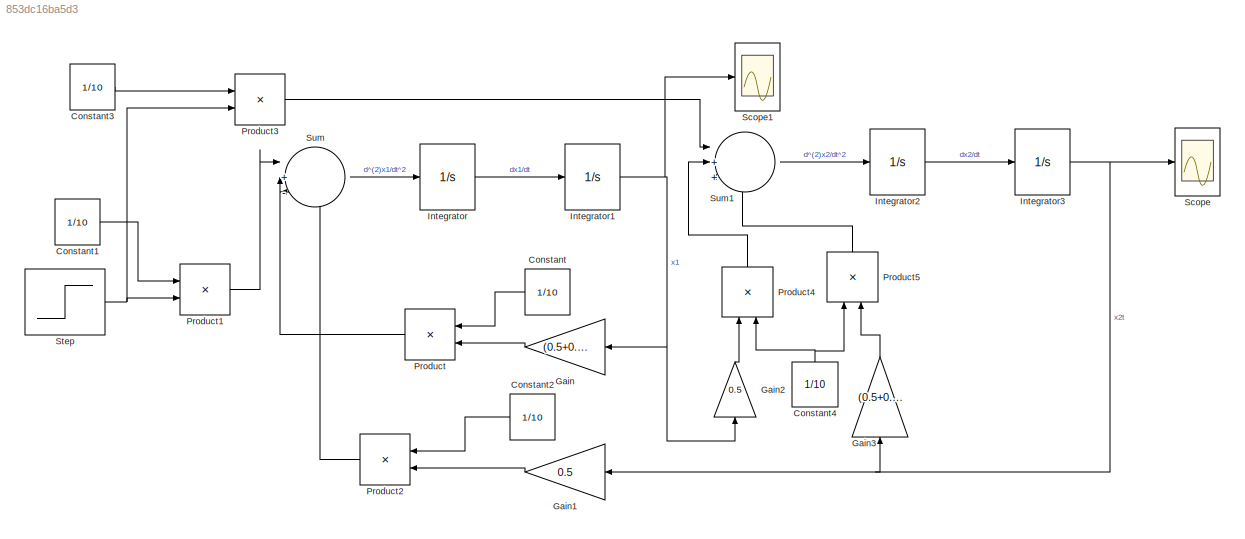
MODEL slx_853dc16ba5d3
KIND model
CONFIG AbsTol = auto
CONFIG EnableMultiTasking = off
CONFIG FixedStep = auto
CONFIG MaxStep = auto
CONFIG MinStep = auto
CONFIG RelTol = 1e-3
CONFIG SampleTimeConstraint = Unconstrained
CONFIG SolverName = VariableStepAuto
CONFIG StartTime = 0.0
CONFIG StopTime = 200
BLOCK [Constant] Constant
  NameLocation = top
  Value = 1/10
BLOCK [Constant] Constant1
  Value = 1/10
BLOCK [Constant] Constant2
  NameLocation = top
  Value = 1/10
BLOCK [Constant] Constant3
  Value = 1/10
BLOCK [Constant] Constant4
  NameLocation = right
  Value = 1/10
BLOCK [Gain] Gain
  Gain = (0.5+0.5)
  NameLocation = top
BLOCK [Gain] Gain1
  Gain = 0.5
  NameLocation = top
BLOCK [Gain] Gain2
  Gain = 0.5
  NameLocation = right
BLOCK [Gain] Gain3
  Gain = (0.5+0.5)
  NameLocation = right
BLOCK [Integrator] Integrator
  Ports = [1, 1]
BLOCK [Integrator] Integrator1
  Ports = [1, 1]
BLOCK [Integrator] Integrator2
  Ports = [1, 1]
BLOCK [Integrator] Integrator3
  Ports = [1, 1]
BLOCK [Product] Product
  NameLocation = top
  Ports = [2, 1]
BLOCK [Product] Product1
  Ports = [2, 1]
BLOCK [Product] Product2
  NameLocation = top
  Ports = [2, 1]
BLOCK [Product] Product3
  Ports = [2, 1]
BLOCK [Product] Product4
  NameLocation = right
  Ports = [2, 1]
BLOCK [Product] Product5
  NameLocation = right
  Ports = [2, 1]
BLOCK [Scope] Scope
  Floating = off
  NumInputPorts = 1
  Ports = [1]
  ScopeSpecificationString = Simulink.scopes.TimeScopeBlockCfg('CurrentConfiguration', extmgr.ConfigurationSet(extmgr.Configuration('Core','General UI',true),extmgr.Configuration('Core','Source UI',true),extmgr.Configuration('Sources','WiredSimulink',true),extmgr.Configuration('Visuals','Time Domain',true,'SerializedDisplays',{struct('MinYLimReal','-0.49973','MaxYLimReal','4.49753','YLabelReal','','MinYLimMag','0.00000','MaxY...<+1378ch>
BLOCK [Scope] Scope1
  Floating = off
  NumInputPorts = 1
  Ports = [1]
  ScopeSpecificationString = Simulink.scopes.TimeScopeBlockCfg('CurrentConfiguration', extmgr.ConfigurationSet(extmgr.Configuration('Core','General UI',true),extmgr.Configuration('Core','Source UI',true),extmgr.Configuration('Sources','WiredSimulink',true,'DataLoggingVariableName','ScopeData1'),extmgr.Configuration('Visuals','Time Domain',true,'SerializedDisplays',{struct('MinYLimReal','-0.49973','MaxYLimReal','4.49753','YLab...<+1415ch>
BLOCK [Step] Step
  SampleTime = 0
BLOCK [Sum] Sum
  Inputs = |+-+
  Ports = [3, 1]
BLOCK [Sum] Sum1
  Inputs = |++-
  Ports = [3, 1]
LINE Constant1:1 -> Product1:1
LINE Constant2:1 -> Product2:1
LINE Constant3:1 -> Product3:1
NET Constant4:1 -> Product4:2, Product5:1
LINE Constant:1 -> Product:1
LINE Gain1:1 -> Product2:2
LINE Gain2:1 -> Product4:1
LINE Gain3:1 -> Product5:2
LINE Gain:1 -> Product:2
NET Integrator1:1 -> Gain2:1, Gain:1, Scope1:1
LINE Integrator2:1 -> Integrator3:1
NET Integrator3:1 -> Gain1:1, Gain3:1, Scope:1
LINE Integrator:1 -> Integrator1:1
LINE Product1:1 -> Sum:1
LINE Product2:1 -> Sum:3
LINE Product3:1 -> Sum1:1
LINE Product4:1 -> Sum1:2
LINE Product5:1 -> Sum1:3
LINE Product:1 -> Sum:2
NET Step:1 -> Product1:2, Product3:2
LINE Sum1:1 -> Integrator2:1
LINE Sum:1 -> Integrator:1
note: NET lines group one-source signal fan-out (src -> all destinations, sorted); 1:1 wires keep LINE
